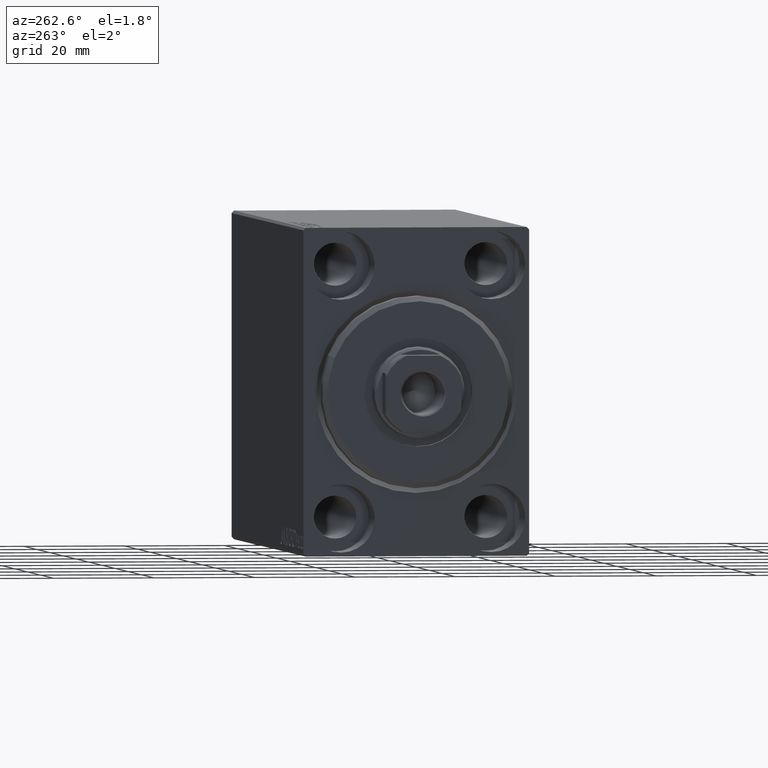
[diagram: clean part render]
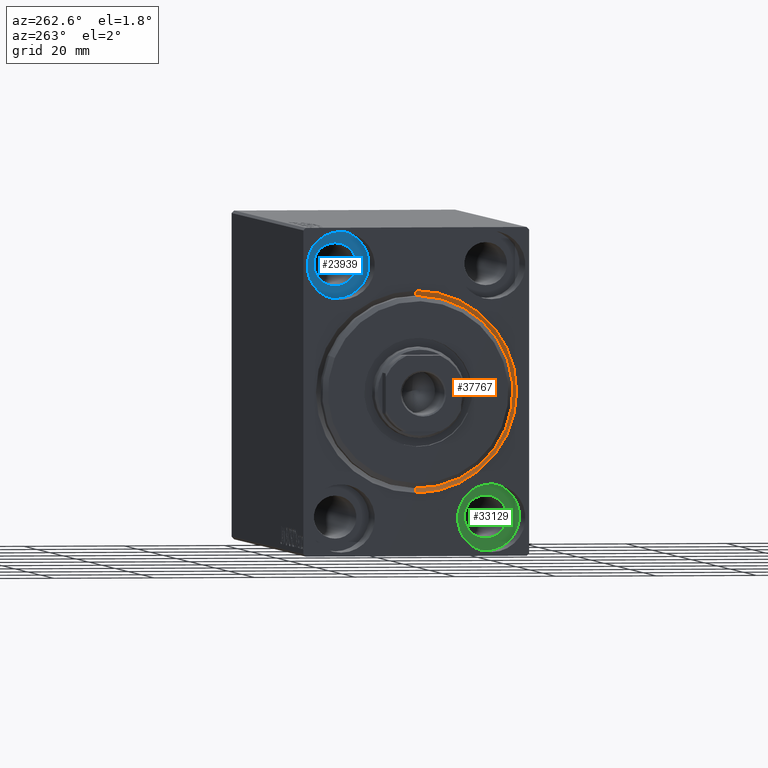
[diagram: same view with three faces highlighted in distinct colors, each labeled with its STEP entity id]
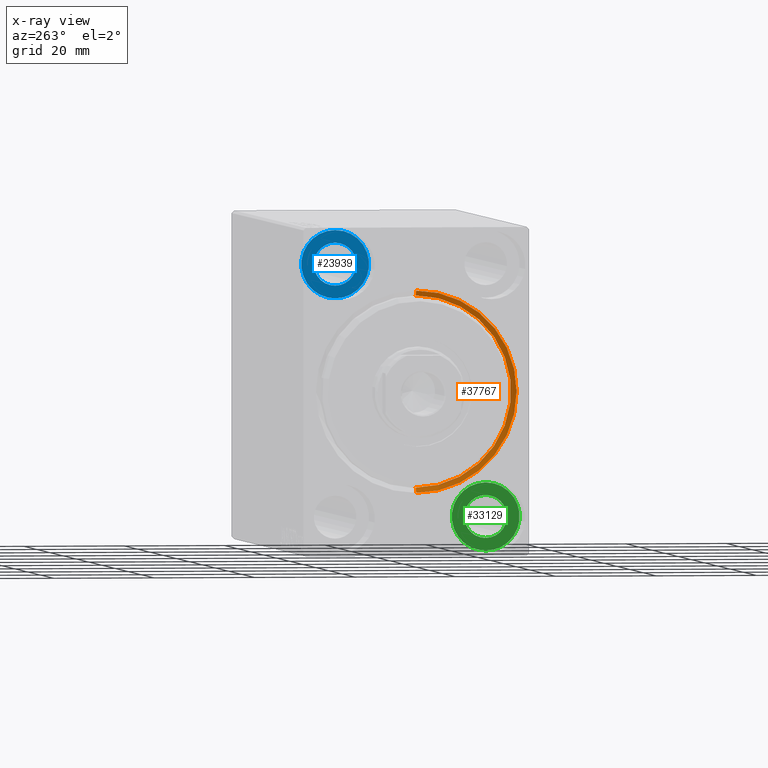
[diagram: x-ray of the same camera — body ghosted, the three highlighted faces saturated]
A machine part, auxiliary view with three faces highlighted in distinct colors.
The next image is the same camera in x-ray (body ghosted, the three faces saturated) — at least one of them is partly hidden behind the body in this view.
Their STEP definitions:

[orange] entity #37767 — the highlighted conical surface has half-angle 45 deg.
#147 = LINE ( 'NONE', #14283, #2733 ) ;
#1025 = EDGE_CURVE ( 'NONE', #5317, #37700, #35355, .T. ) ;
#1434 = DIRECTION ( 'NONE',  ( -1.000000000000000000, 0.000000000000000000, 0.000000000000000000 ) ) ;
#2733 = VECTOR ( 'NONE', #10951, 1000.000000000000000 ) ;
#4598 = CARTESIAN_POINT ( 'NONE',  ( 1.000000000000000888, 0.000000000000000000, 19.00000000000000000 ) ) ;
#5196 = FACE_OUTER_BOUND ( 'NONE', #25273, .T. ) ;
#5317 = VERTEX_POINT ( 'NONE', #19717 ) ;
#7227 = DIRECTION ( 'NONE',  ( 0.000000000000000000, 0.000000000000000000, -1.000000000000000000 ) ) ;
#9013 = EDGE_CURVE ( 'NONE', #30367, #11248, #147, .T. ) ;
#9853 = ORIENTED_EDGE ( 'NONE', *, *, #26687, .F. ) ;
#10612 = AXIS2_PLACEMENT_3D ( 'NONE', #14979, #42412, #11203 ) ;
#10951 = DIRECTION ( 'NONE',  ( -0.7071067811865463515, 0.000000000000000000, 0.7071067811865487940 ) ) ;
#11203 = DIRECTION ( 'NONE',  ( 0.000000000000000000, 0.000000000000000000, -1.000000000000000000 ) ) ;
#11248 = VERTEX_POINT ( 'NONE', #37475 ) ;
#12116 = CARTESIAN_POINT ( 'NONE',  ( 1.000000000000000888, 2.326828918379970970E-15, -19.00000000000000000 ) ) ;
#13352 = VECTOR ( 'NONE', #38676, 1000.000000000000000 ) ;
#13442 = CARTESIAN_POINT ( 'NONE',  ( 1.000000000000000888, 0.000000000000000000, 0.000000000000000000 ) ) ;
#13899 = ORIENTED_EDGE ( 'NONE', *, *, #17095, .F. ) ;
#14283 = CARTESIAN_POINT ( 'NONE',  ( 1.000000000000000888, 0.000000000000000000, 19.00000000000000000 ) ) ;
#14937 = ORIENTED_EDGE ( 'NONE', *, *, #9013, .F. ) ;
#14979 = CARTESIAN_POINT ( 'NONE',  ( 0.000000000000000000, 0.000000000000000000, 0.000000000000000000 ) ) ;
#16312 = CARTESIAN_POINT ( 'NONE',  ( 0.000000000000000000, 2.449293598294706907E-15, -20.00000000000000355 ) ) ;
#17095 = EDGE_CURVE ( 'NONE', #11248, #37700, #32550, .T. ) ;
#19717 = CARTESIAN_POINT ( 'NONE',  ( 1.000000000000000888, 2.326828918379970970E-15, -19.00000000000000000 ) ) ;
#21379 = CARTESIAN_POINT ( 'NONE',  ( 1.000000000000000888, 0.000000000000000000, 0.000000000000000000 ) ) ;
#21642 = AXIS2_PLACEMENT_3D ( 'NONE', #21379, #1434, #32224 ) ;
#25273 = EDGE_LOOP ( 'NONE', ( #9853, #42796, #13899, #14937 ) ) ;
#26397 = AXIS2_PLACEMENT_3D ( 'NONE', #13442, #27174, #7227 ) ;
#26687 = EDGE_CURVE ( 'NONE', #5317, #30367, #41967, .T. ) ;
#27174 = DIRECTION ( 'NONE',  ( -1.000000000000000000, 0.000000000000000000, 0.000000000000000000 ) ) ;
#30367 = VERTEX_POINT ( 'NONE', #4598 ) ;
#32224 = DIRECTION ( 'NONE',  ( 0.000000000000000000, 0.000000000000000000, 1.000000000000000000 ) ) ;
#32550 = CIRCLE ( 'NONE', #10612, 20.00000000000000355 ) ;
#32955 = CONICAL_SURFACE ( 'NONE', #21642, 19.00000000000000000, 0.7853981633974500554 ) ;
#35355 = LINE ( 'NONE', #12116, #13352 ) ;
#37475 = CARTESIAN_POINT ( 'NONE',  ( 0.000000000000000000, 0.000000000000000000, 20.00000000000000355 ) ) ;
#37700 = VERTEX_POINT ( 'NONE', #16312 ) ;
#37767 = ADVANCED_FACE ( 'NONE', ( #5196 ), #32955, .F. ) ;
#38676 = DIRECTION ( 'NONE',  ( -0.7071067811865463515, 8.659560562354948882E-17, -0.7071067811865487940 ) ) ;
#41967 = CIRCLE ( 'NONE', #26397, 19.00000000000000000 ) ;
#42412 = DIRECTION ( 'NONE',  ( 1.000000000000000000, 0.000000000000000000, 0.000000000000000000 ) ) ;
#42796 = ORIENTED_EDGE ( 'NONE', *, *, #1025, .T. ) ;

[blue] entity #23939 — the highlighted planar face has unit normal (-1, 0, 0).
#1158 = FACE_BOUND ( 'NONE', #36973, .T. ) ;
#1604 = DIRECTION ( 'NONE',  ( -1.000000000000000000, 0.000000000000000000, 0.000000000000000000 ) ) ;
#3576 = ORIENTED_EDGE ( 'NONE', *, *, #37017, .T. ) ;
#4749 = CARTESIAN_POINT ( 'NONE',  ( 9.000000000000000000, 15.00000000000000355, 25.00000000000000000 ) ) ;
#6467 = VERTEX_POINT ( 'NONE', #14648 ) ;
#7222 = AXIS2_PLACEMENT_3D ( 'NONE', #41468, #18216, #42122 ) ;
#8020 = CIRCLE ( 'NONE', #16489, 4.249999999999996447 ) ;
#8046 = ORIENTED_EDGE ( 'NONE', *, *, #18825, .F. ) ;
#8079 = DIRECTION ( 'NONE',  ( 0.000000000000000000, 0.000000000000000000, 1.000000000000000000 ) ) ;
#8913 = DIRECTION ( 'NONE',  ( 0.000000000000000000, 0.000000000000000000, 1.000000000000000000 ) ) ;
#9125 = DIRECTION ( 'NONE',  ( 0.000000000000000000, 0.000000000000000000, 1.000000000000000000 ) ) ;
#10642 = CIRCLE ( 'NONE', #34694, 4.249999999999996447 ) ;
#11029 = EDGE_LOOP ( 'NONE', ( #3576, #12922 ) ) ;
#12922 = ORIENTED_EDGE ( 'NONE', *, *, #24082, .T. ) ;
#13110 = ORIENTED_EDGE ( 'NONE', *, *, #29799, .F. ) ;
#14470 = PLANE ( 'NONE',  #7222 ) ;
#14648 = CARTESIAN_POINT ( 'NONE',  ( 9.000000000000000000, 15.00000000000000355, 31.75000000000000000 ) ) ;
#16489 = AXIS2_PLACEMENT_3D ( 'NONE', #19312, #1604, #9125 ) ;
#16665 = DIRECTION ( 'NONE',  ( -1.000000000000000000, 0.000000000000000000, 0.000000000000000000 ) ) ;
#16672 = CARTESIAN_POINT ( 'NONE',  ( 8.999999999999994671, 15.00000000000000355, 20.75000000000000355 ) ) ;
#17614 = CARTESIAN_POINT ( 'NONE',  ( 8.999999999999994671, 15.00000000000000355, 29.25000000000000000 ) ) ;
#18216 = DIRECTION ( 'NONE',  ( -1.000000000000000000, 0.000000000000000000, 0.000000000000000000 ) ) ;
#18825 = EDGE_CURVE ( 'NONE', #20567, #19691, #10642, .T. ) ;
#19312 = CARTESIAN_POINT ( 'NONE',  ( 8.999999999999994671, 15.00000000000000355, 25.00000000000000000 ) ) ;
#19691 = VERTEX_POINT ( 'NONE', #16672 ) ;
#20567 = VERTEX_POINT ( 'NONE', #17614 ) ;
#22417 = DIRECTION ( 'NONE',  ( -1.000000000000000000, 0.000000000000000000, 0.000000000000000000 ) ) ;
#22872 = DIRECTION ( 'NONE',  ( 0.000000000000000000, 0.000000000000000000, 1.000000000000000000 ) ) ;
#23939 = ADVANCED_FACE ( 'NONE', ( #1158, #38584 ), #14470, .T. ) ;
#24082 = EDGE_CURVE ( 'NONE', #27826, #6467, #32712, .T. ) ;
#27808 = DIRECTION ( 'NONE',  ( -1.000000000000000000, 0.000000000000000000, 0.000000000000000000 ) ) ;
#27826 = VERTEX_POINT ( 'NONE', #33769 ) ;
#29799 = EDGE_CURVE ( 'NONE', #19691, #20567, #8020, .T. ) ;
#32712 = CIRCLE ( 'NONE', #38355, 6.749999999999999112 ) ;
#33500 = CARTESIAN_POINT ( 'NONE',  ( 8.999999999999994671, 15.00000000000000355, 25.00000000000000000 ) ) ;
#33769 = CARTESIAN_POINT ( 'NONE',  ( 9.000000000000000000, 15.00000000000000355, 18.25000000000000355 ) ) ;
#34694 = AXIS2_PLACEMENT_3D ( 'NONE', #33500, #16665, #22872 ) ;
#35742 = CIRCLE ( 'NONE', #37148, 6.749999999999999112 ) ;
#36973 = EDGE_LOOP ( 'NONE', ( #8046, #13110 ) ) ;
#37017 = EDGE_CURVE ( 'NONE', #6467, #27826, #35742, .T. ) ;
#37148 = AXIS2_PLACEMENT_3D ( 'NONE', #4749, #27808, #8079 ) ;
#38355 = AXIS2_PLACEMENT_3D ( 'NONE', #39455, #22417, #8913 ) ;
#38584 = FACE_OUTER_BOUND ( 'NONE', #11029, .T. ) ;
#39455 = CARTESIAN_POINT ( 'NONE',  ( 9.000000000000000000, 15.00000000000000355, 25.00000000000000000 ) ) ;
#41468 = CARTESIAN_POINT ( 'NONE',  ( 9.000000000000000000, 0.000000000000000000, 0.000000000000000000 ) ) ;
#42122 = DIRECTION ( 'NONE',  ( 0.000000000000000000, 0.000000000000000000, 1.000000000000000000 ) ) ;

[green] entity #33129 — the highlighted planar face has unit normal (-1, 0, 0).
#244 = ORIENTED_EDGE ( 'NONE', *, *, #23957, .T. ) ;
#280 = EDGE_CURVE ( 'NONE', #39119, #32666, #39521, .T. ) ;
#730 = EDGE_LOOP ( 'NONE', ( #244, #19110 ) ) ;
#1380 = DIRECTION ( 'NONE',  ( -1.000000000000000000, 0.000000000000000000, 0.000000000000000000 ) ) ;
#2735 = CARTESIAN_POINT ( 'NONE',  ( 9.000000000000000000, 0.000000000000000000, 0.000000000000000000 ) ) ;
#3107 = AXIS2_PLACEMENT_3D ( 'NONE', #2735, #13154, #32866 ) ;
#4413 = AXIS2_PLACEMENT_3D ( 'NONE', #23155, #33116, #36647 ) ;
#5195 = DIRECTION ( 'NONE',  ( 0.000000000000000000, 0.000000000000000000, 1.000000000000000000 ) ) ;
#5395 = ORIENTED_EDGE ( 'NONE', *, *, #28570, .F. ) ;
#5851 = FACE_OUTER_BOUND ( 'NONE', #730, .T. ) ;
#7527 = DIRECTION ( 'NONE',  ( -1.000000000000000000, 0.000000000000000000, 0.000000000000000000 ) ) ;
#7949 = AXIS2_PLACEMENT_3D ( 'NONE', #19139, #38635, #5195 ) ;
#7974 = EDGE_CURVE ( 'NONE', #28367, #43321, #25687, .T. ) ;
#9346 = AXIS2_PLACEMENT_3D ( 'NONE', #25090, #1380, #18435 ) ;
#10103 = CIRCLE ( 'NONE', #7949, 4.249999999999996447 ) ;
#13154 = DIRECTION ( 'NONE',  ( -1.000000000000000000, 0.000000000000000000, 0.000000000000000000 ) ) ;
#14182 = CARTESIAN_POINT ( 'NONE',  ( 8.999999999999994671, -15.00000000000000355, -25.00000000000000000 ) ) ;
#15541 = CARTESIAN_POINT ( 'NONE',  ( 9.000000000000000000, -15.00000000000000355, -31.75000000000000000 ) ) ;
#16429 = CIRCLE ( 'NONE', #9346, 6.749999999999999112 ) ;
#17536 = EDGE_LOOP ( 'NONE', ( #24384, #5395 ) ) ;
#18435 = DIRECTION ( 'NONE',  ( 0.000000000000000000, 0.000000000000000000, 1.000000000000000000 ) ) ;
#19110 = ORIENTED_EDGE ( 'NONE', *, *, #7974, .T. ) ;
#19139 = CARTESIAN_POINT ( 'NONE',  ( 8.999999999999994671, -15.00000000000000355, -25.00000000000000000 ) ) ;
#23155 = CARTESIAN_POINT ( 'NONE',  ( 9.000000000000000000, -15.00000000000000355, -25.00000000000000000 ) ) ;
#23709 = DIRECTION ( 'NONE',  ( 0.000000000000000000, 0.000000000000000000, 1.000000000000000000 ) ) ;
#23957 = EDGE_CURVE ( 'NONE', #43321, #28367, #16429, .T. ) ;
#24384 = ORIENTED_EDGE ( 'NONE', *, *, #280, .F. ) ;
#25090 = CARTESIAN_POINT ( 'NONE',  ( 9.000000000000000000, -15.00000000000000355, -25.00000000000000000 ) ) ;
#25687 = CIRCLE ( 'NONE', #4413, 6.749999999999999112 ) ;
#28367 = VERTEX_POINT ( 'NONE', #15541 ) ;
#28570 = EDGE_CURVE ( 'NONE', #32666, #39119, #10103, .T. ) ;
#29018 = CARTESIAN_POINT ( 'NONE',  ( 8.999999999999994671, -15.00000000000000355, -20.75000000000000355 ) ) ;
#31725 = CARTESIAN_POINT ( 'NONE',  ( 9.000000000000000000, -15.00000000000000355, -18.25000000000000355 ) ) ;
#32651 = FACE_BOUND ( 'NONE', #17536, .T. ) ;
#32666 = VERTEX_POINT ( 'NONE', #34489 ) ;
#32866 = DIRECTION ( 'NONE',  ( 0.000000000000000000, 0.000000000000000000, 1.000000000000000000 ) ) ;
#33116 = DIRECTION ( 'NONE',  ( -1.000000000000000000, 0.000000000000000000, 0.000000000000000000 ) ) ;
#33129 = ADVANCED_FACE ( 'NONE', ( #32651, #5851 ), #42613, .T. ) ;
#34489 = CARTESIAN_POINT ( 'NONE',  ( 8.999999999999994671, -15.00000000000000355, -29.25000000000000000 ) ) ;
#35250 = AXIS2_PLACEMENT_3D ( 'NONE', #14182, #7527, #23709 ) ;
#36647 = DIRECTION ( 'NONE',  ( 0.000000000000000000, 0.000000000000000000, 1.000000000000000000 ) ) ;
#38635 = DIRECTION ( 'NONE',  ( -1.000000000000000000, 0.000000000000000000, 0.000000000000000000 ) ) ;
#39119 = VERTEX_POINT ( 'NONE', #29018 ) ;
#39521 = CIRCLE ( 'NONE', #35250, 4.249999999999996447 ) ;
#42613 = PLANE ( 'NONE',  #3107 ) ;
#43321 = VERTEX_POINT ( 'NONE', #31725 ) ;